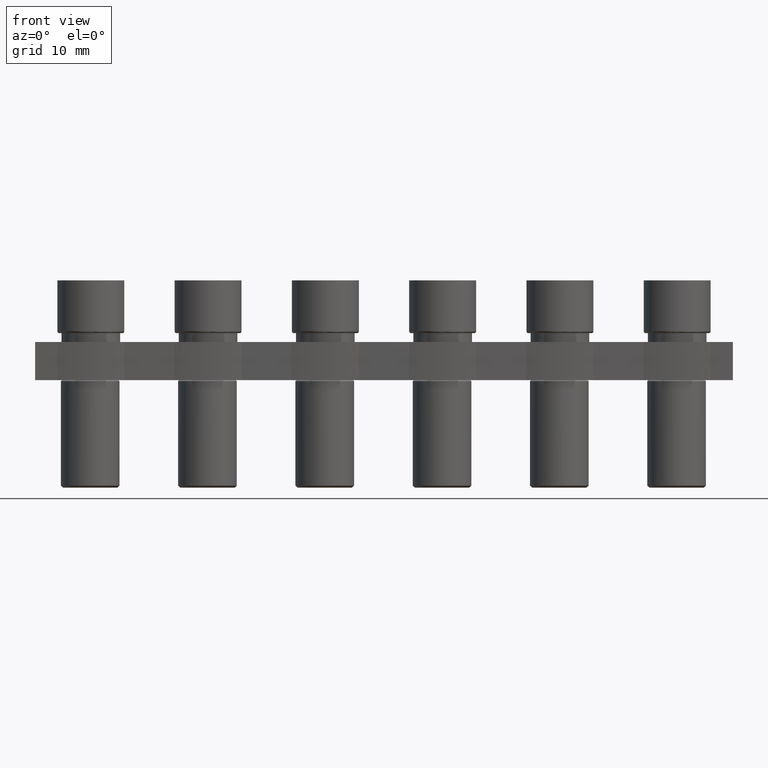
[diagram: clean part render]
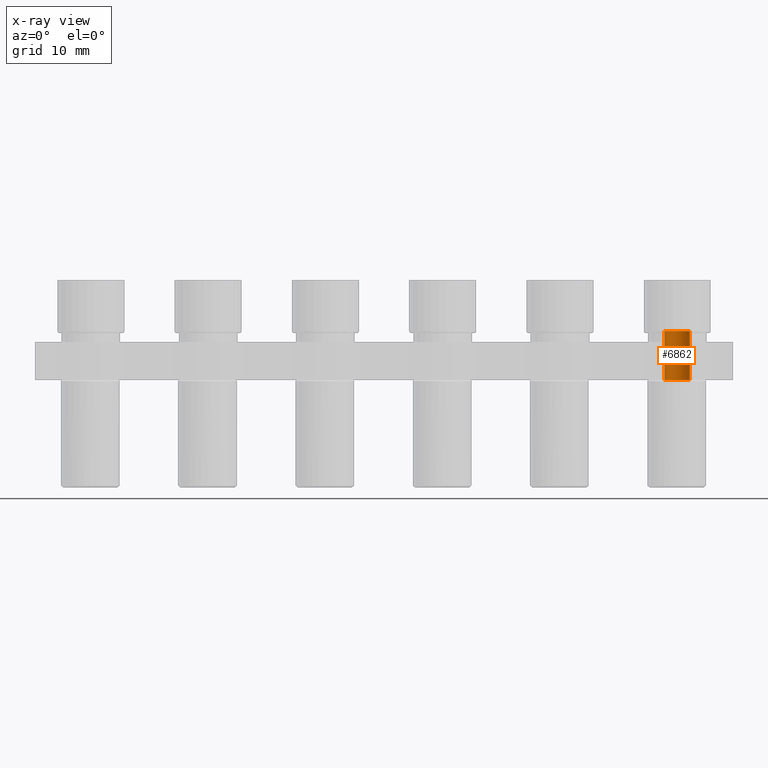
[diagram: x-ray — body ghosted, one internal face saturated and labeled with its STEP entity id]
A machine part, front view, then the same camera in x-ray: the body is ghosted and one INTERNAL B-rep face — a face not visible from any outside direction — is saturated and labeled: STEP entity #6862.
In plain terms, the highlighted cylindrical surface (edge-blend (fillet) strip) has radius 1.3 mm, axis along (0, 0, -1).
Its self-contained STEP definition (entity closure, byte-faithful):
#113 = AXIS2_PLACEMENT_3D ( 'NONE', #8746, #8741, #8736 ) ;
#1592 = CARTESIAN_POINT ( 'NONE',  ( 10.69999999999999900, 1.465963500825148300E-015, 0.2156922148392366500 ) ) ;
#1598 = CARTESIAN_POINT ( 'NONE',  ( 10.69999999999999900, 1.465963500825148300E-015, -4.800000000000002500 ) ) ;
#1645 = CARTESIAN_POINT ( 'NONE',  ( 13.30000000000000100, 1.625167584714304300E-015, 0.2156922148392366500 ) ) ;
#1666 = CARTESIAN_POINT ( 'NONE',  ( 13.30000000000000100, 1.625167584714304300E-015, -4.800000000000002500 ) ) ;
#2606 = LINE ( 'NONE', #2613, #7563 ) ;
#2608 = DIRECTION ( 'NONE',  ( 0.0000000000000000000, 0.0000000000000000000, -1.000000000000000000 ) ) ;
#2613 = CARTESIAN_POINT ( 'NONE',  ( 10.69999999999999900, 1.465963500825148300E-015, -18.28430778516076700 ) ) ;
#2764 = DIRECTION ( 'NONE',  ( 0.0000000000000000000, 0.0000000000000000000, -1.000000000000000000 ) ) ;
#2768 = CARTESIAN_POINT ( 'NONE',  ( 13.30000000000000100, 1.625167584714304300E-015, -18.28430778516076700 ) ) ;
#2778 = LINE ( 'NONE', #2768, #7620 ) ;
#2786 = DIRECTION ( 'NONE',  ( -1.000000000000000000, 0.0000000000000000000, 0.0000000000000000000 ) ) ;
#2800 = DIRECTION ( 'NONE',  ( 0.0000000000000000000, 0.0000000000000000000, -1.000000000000000000 ) ) ;
#2817 = CARTESIAN_POINT ( 'NONE',  ( 12.00000000000000000, 1.465963500825148300E-015, 0.2156922148392366500 ) ) ;
#3382 = EDGE_LOOP ( 'NONE', ( #4514, #4467, #4473, #4478 ) ) ;
#4467 = ORIENTED_EDGE ( 'NONE', *, *, #6145, .T. ) ;
#4473 = ORIENTED_EDGE ( 'NONE', *, *, #6045, .T. ) ;
#4478 = ORIENTED_EDGE ( 'NONE', *, *, #6059, .F. ) ;
#4514 = ORIENTED_EDGE ( 'NONE', *, *, #6164, .T. ) ;
#4738 = VERTEX_POINT ( 'NONE', #1592 ) ;
#4741 = VERTEX_POINT ( 'NONE', #1598 ) ;
#4748 = VERTEX_POINT ( 'NONE', #1645 ) ;
#4775 = VERTEX_POINT ( 'NONE', #1666 ) ;
#5630 = DIRECTION ( 'NONE',  ( -0.0000000000000000000, -0.0000000000000000000, 1.000000000000000000 ) ) ;
#5670 = CARTESIAN_POINT ( 'NONE',  ( 12.00000000000000000, 1.465963500825148300E-015, -4.800000000000002500 ) ) ;
#6045 = EDGE_CURVE ( 'NONE', #4775, #4741, #7551, .T. ) ;
#6059 = EDGE_CURVE ( 'NONE', #4738, #4741, #2606, .T. ) ;
#6145 = EDGE_CURVE ( 'NONE', #4748, #4775, #2778, .T. ) ;
#6164 = EDGE_CURVE ( 'NONE', #4738, #4748, #7643, .T. ) ;
#6232 = DIRECTION ( 'NONE',  ( -1.000000000000000000, 0.0000000000000000000, 0.0000000000000000000 ) ) ;
#6862 = ADVANCED_FACE ( 'NONE', ( #8734 ), #8716, .T. ) ;
#7550 = AXIS2_PLACEMENT_3D ( 'NONE', #5670, #5630, #6232 ) ;
#7551 = CIRCLE ( 'NONE', #7550, 1.300000000000000700 ) ;
#7563 = VECTOR ( 'NONE', #2608, 1000.000000000000000 ) ;
#7620 = VECTOR ( 'NONE', #2764, 1000.000000000000000 ) ;
#7643 = CIRCLE ( 'NONE', #7649, 1.300000000000000700 ) ;
#7649 = AXIS2_PLACEMENT_3D ( 'NONE', #2817, #2800, #2786 ) ;
#8716 = CYLINDRICAL_SURFACE ( 'NONE', #113, 1.300000000000000700 ) ;
#8734 = FACE_OUTER_BOUND ( 'NONE', #3382, .T. ) ;
#8736 = DIRECTION ( 'NONE',  ( -1.000000000000000000, 0.0000000000000000000, 0.0000000000000000000 ) ) ;
#8741 = DIRECTION ( 'NONE',  ( 0.0000000000000000000, 0.0000000000000000000, -1.000000000000000000 ) ) ;
#8746 = CARTESIAN_POINT ( 'NONE',  ( 12.00000000000000000, 1.465963500825148300E-015, -18.28430778516076700 ) ) ;